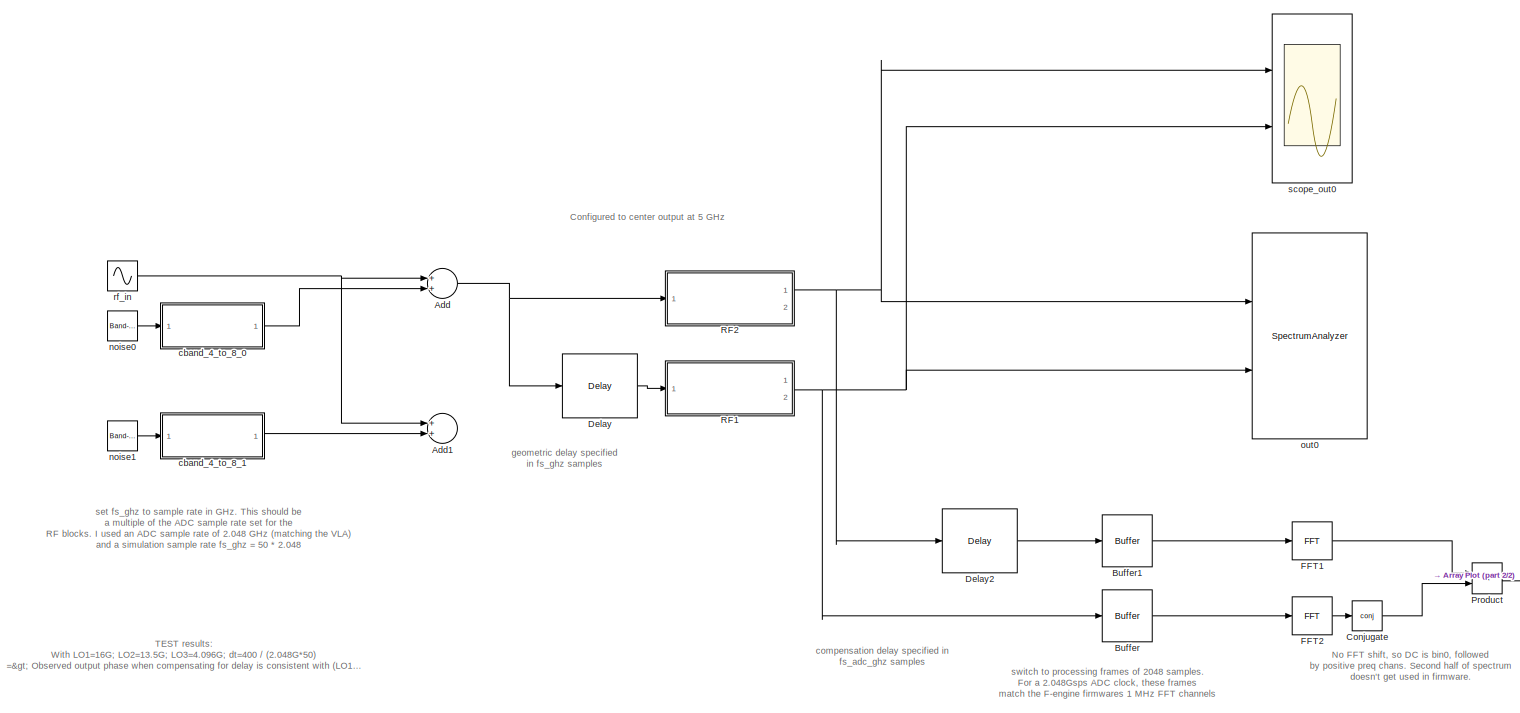
[diagram: root canvas - part 1/2, most of the canvas]
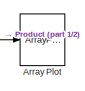
[diagram: root canvas - part 2/2, bottom right region]
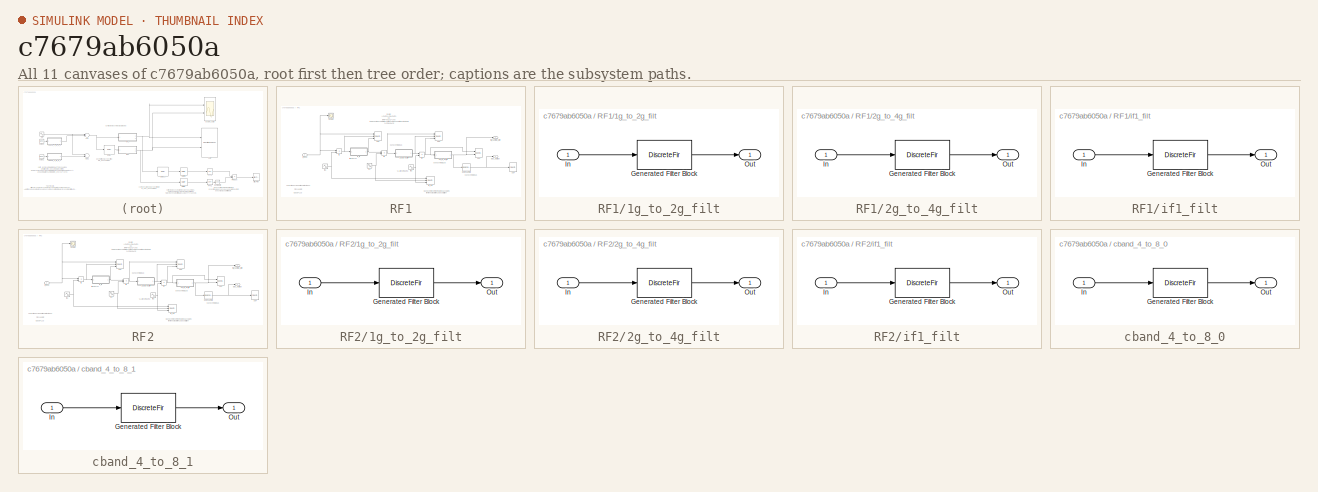
[diagram: thumbnail index - all 11 canvases of the model, root first then tree order]
MODEL slx_c7679ab6050a
KIND model
CONFIG AbsTol = auto
CONFIG EnableMultiTasking = off
CONFIG FixedStep = auto
CONFIG MaxStep = auto
CONFIG MinStep = auto
CONFIG RelTol = 1e-3
CONFIG SampleTimeConstraint = Unconstrained
CONFIG Solver = VariableStepAuto
CONFIG SolverName = VariableStepAuto
CONFIG StartTime = 0.0
CONFIG StopTime = 400000 / (fs_ghz * 1e9)
BLOCK [Sum] Add
  InputSameDT = off
  OutDataTypeStr = Inherit: Inherit via internal rule
  Ports = [2, 1]
  SaturateOnIntegerOverflow = off
BLOCK [Sum] Add1
  InputSameDT = off
  OutDataTypeStr = Inherit: Inherit via internal rule
  Ports = [2, 1]
  SaturateOnIntegerOverflow = off
BLOCK [ArrayPlot] Array Plot
  Ports = [1]
  ScopeSpecificationString = dsp.scopes.ArrayPlotBlockSpecification('CurrentConfiguration', extmgr.ConfigurationSet(extmgr.Configuration('Core','General UI',true),extmgr.Configuration('Core','Source UI',true),extmgr.Configuration('Sources','WiredSimulink',true),extmgr.Configuration('Visuals','Array Plot',true,'DisplayPropertyDefaults',struct('MinYLimReal','18.2743','MaxYLimReal','38.2743','YLabelReal','Amplitude','MinYLimMag'...<+2081ch>
BLOCK [Buffer] Buffer
  N = 2048
  OutputFrames = off
BLOCK [Buffer] Buffer1
  N = 2048
  OutputFrames = off
BLOCK [Math] Conjugate
  Operator = conj
  Ports = [1, 1]
  RndMeth = Zero
BLOCK [Delay] Delay
  DelayLength = 400
  InitialCondition = 0
  InputPortMap = u0
  Ports = [1, 1]
BLOCK [Delay] Delay2
  DelayLength = 400/50
  InitialCondition = 0
  InputPortMap = u0
  Ports = [1, 1]
BLOCK [Reference] FFT1  REF=dspxfrm3/FFT
  Ports = [1, 1]
  SourceBlock = dspxfrm3/FFT
  SourceProductBaseCode = DS
  SourceProductName = DSP System Toolbox
  SourceType = FFT
BLOCK [Reference] FFT2  REF=dspxfrm3/FFT
  Ports = [1, 1]
  SourceBlock = dspxfrm3/FFT
  SourceProductBaseCode = DS
  SourceProductName = DSP System Toolbox
  SourceType = FFT
BLOCK [Product] Product
  InputSameDT = off
  OutDataTypeStr = Inherit: Inherit via internal rule
  Ports = [2, 1]
  RndMeth = Floor
  SaturateOnIntegerOverflow = off
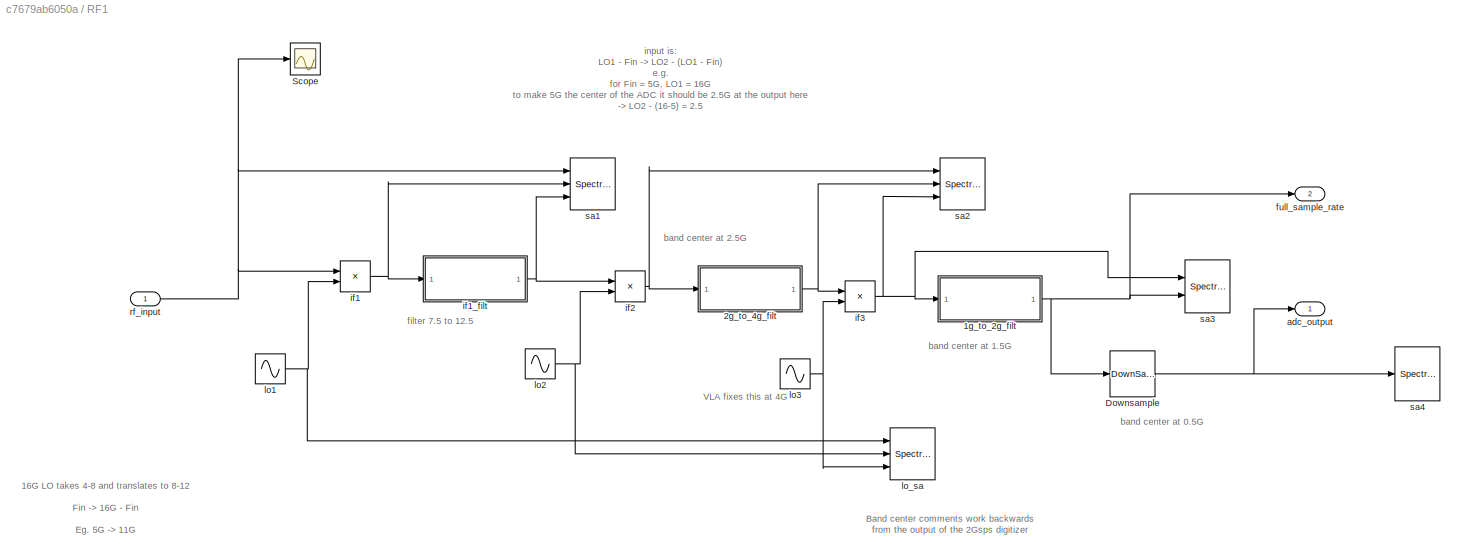
BLOCK [SubSystem] RF1
  Ports = [1, 2]
  RequestExecContextInheritance = off
BLOCK [SubSystem] RF1/1g_to_2g_filt
  CopyFcn = fdesignblkfcn(gcbh, {'CopyFcn'});
  DialogController = fdesignblkfcn
  InitFcn = fdesignblkfcn(gcbh, {'InitFcn'});
  Ports = [1, 1]
  RequestExecContextInheritance = off
  UserDataPersistent = on
BLOCK [DiscreteFir] RF1/1g_to_2g_filt/Generated Filter Block
  Coefficients = [1.01704780809032204e-05 8.00513267945117663e-06 5.63585570426750819e-06 3.08357437286688761e-06 3.7215072795178805e-07 -2.47188488010559091e-06 -5.41963823333738916e-06 -8.44018986497744443e-06 -1.15009636491456078e-05 -1.45681207425512571e-05 -1.76069739067568088e-05 -2.05824169501533862e-05 -2.34593638064728185e-05 -2.62031916145401389e-05 -2.87801820842337675e-05 -3.11579554275093182e-05 -3.33...<+60115ch>
  InputPortMap = u0
  InputProcessing = Columns as channels (frame based)
  OutputPortMap = o0
  Ports = [1, 1]
  Tag = BlockMethodSubSystem
BLOCK [Inport] RF1/1g_to_2g_filt/In
  IconDisplay = Port number
BLOCK [Outport] RF1/1g_to_2g_filt/Out
  IconDisplay = Port number
BLOCK [SubSystem] RF1/2g_to_4g_filt
  CopyFcn = fdesignblkfcn(gcbh, {'CopyFcn'});
  DialogController = fdesignblkfcn
  InitFcn = fdesignblkfcn(gcbh, {'InitFcn'});
  Ports = [1, 1]
  RequestExecContextInheritance = off
  UserDataPersistent = on
BLOCK [DiscreteFir] RF1/2g_to_4g_filt/Generated Filter Block
  Coefficients = [2.93722382866788096e-05 3.41459391652129034e-05 3.77128110868576443e-05 3.99224737036247014e-05 4.06853079430514713e-05 3.99767906724050358e-05 3.78385630665936822e-05 3.43761762884411585e-05 2.97536321530244167e-05 2.41850044819596572e-05 1.79235799255994288e-05 1.12490869892622225e-05 4.4536819092569802e-06 -2.17257546056165917e-06 -8.35599694025994471e-06 -1.38525483000206094e-05 -1.8459448475...<+59953ch>
  InputPortMap = u0
  InputProcessing = Columns as channels (frame based)
  OutputPortMap = o0
  Ports = [1, 1]
  Tag = BlockMethodSubSystem
BLOCK [Inport] RF1/2g_to_4g_filt/In
  IconDisplay = Port number
BLOCK [Outport] RF1/2g_to_4g_filt/Out
  IconDisplay = Port number
BLOCK [DownSample] RF1/Downsample
  InputProcessing = Elements as channels (sample based)
  N = fs_ghz/adc_fs_ghz
  RateOptions = Allow multirate processing
BLOCK [Scope] RF1/Scope
  Floating = off
  NumInputPorts = 1
  Ports = [1]
  ScopeSpecificationString = Simulink.scopes.TimeScopeBlockCfg('CurrentConfiguration', extmgr.ConfigurationSet(extmgr.Configuration('Core','General UI',true),extmgr.Configuration('Core','Source UI',true),extmgr.Configuration('Sources','WiredSimulink',true),extmgr.Configuration('Visuals','Time Domain',true,'SerializedDisplays',{struct('MinYLimReal','-45.88159','MaxYLimReal','46.97367','YLabelReal','','MinYLimMag','0.00000','Ma...<+1378ch>
BLOCK [Outport] RF1/adc_output
  IconDisplay = Port number
BLOCK [Outport] RF1/full_sample_rate
  IconDisplay = Port number
  Port = 2
BLOCK [Product] RF1/if1
  InputSameDT = off
  OutDataTypeStr = Inherit: Inherit via internal rule
  Ports = [2, 1]
  RndMeth = Floor
  SaturateOnIntegerOverflow = off
BLOCK [SubSystem] RF1/if1_filt
  CopyFcn = fdesignblkfcn(gcbh, {'CopyFcn'});
  DialogController = fdesignblkfcn
  InitFcn = fdesignblkfcn(gcbh, {'InitFcn'});
  Ports = [1, 1]
  RequestExecContextInheritance = off
  UserDataPersistent = on
BLOCK [DiscreteFir] RF1/if1_filt/Generated Filter Block
  Coefficients = [3.4793427262309392e-05 5.44930009021886444e-05 7.67230161640516311e-06 -4.90795005220614759e-05 -5.00251028970550559e-05 3.70846460305349548e-05 0.000185516672775070751 0.000317032928598762903 0.000341105037848429924 0.000206892118281761336 -5.9982989554209261e-05 -0.00035835848219169399 -0.000554209791067096871 -0.000546424234637173838 -0.000322177302977984053 2.93739649481302108e-05 0.000356381...<+5519ch>
  InputPortMap = u0
  InputProcessing = Columns as channels (frame based)
  OutputPortMap = o0
  Ports = [1, 1]
  Tag = BlockMethodSubSystem
BLOCK [Inport] RF1/if1_filt/In
  IconDisplay = Port number
BLOCK [Outport] RF1/if1_filt/Out
  IconDisplay = Port number
BLOCK [Product] RF1/if2
  InputSameDT = off
  OutDataTypeStr = Inherit: Inherit via internal rule
  Ports = [2, 1]
  RndMeth = Floor
  SaturateOnIntegerOverflow = off
BLOCK [Product] RF1/if3
  InputSameDT = off
  OutDataTypeStr = Inherit: Inherit via internal rule
  Ports = [2, 1]
  RndMeth = Floor
  SaturateOnIntegerOverflow = off
BLOCK [Sin] RF1/lo1
  Frequency = lo1_ghz * 1e9 * 2 * pi
  Ports = [0, 1]
  SampleTime = 1/(fs_ghz * 1e9)
BLOCK [Sin] RF1/lo2
  Frequency = (lo2_ghz*1e9 + fshift_hz) * 2 * pi
  Ports = [0, 1]
  SampleTime = 1/(fs_ghz*1e9)
BLOCK [Sin] RF1/lo3
  Frequency = (lo3_ghz * 1e9) * 2 * pi
  Ports = [0, 1]
  SampleTime = 1/(fs_ghz * 1e9)
BLOCK [SpectrumAnalyzer] RF1/lo_sa
  NumInputPorts = 3
  Ports = [3]
  ScopeSpecificationString = spbscopes.SpectrumAnalyzerBlockCfg('CurrentConfiguration', extmgr.ConfigurationSet(extmgr.Configuration('Core','General UI',true),extmgr.Configuration('Core','Source UI',true),extmgr.Configuration('Sources','WiredSimulink',true),extmgr.Configuration('Visuals','Spectrum',true,'AxesProperties',struct('Color',{[0 0 0],[0 0 0]},'XColor',{[0.686274509803922 0.686274509803922 0.686274509803922],[0.68627...<+2114ch>
BLOCK [Inport] RF1/rf_input
  IconDisplay = Port number
BLOCK [SpectrumAnalyzer] RF1/sa1
  NumInputPorts = 3
  Ports = [3]
  ScopeSpecificationString = spbscopes.SpectrumAnalyzerBlockCfg('CurrentConfiguration', extmgr.ConfigurationSet(extmgr.Configuration('Core','General UI',true),extmgr.Configuration('Core','Source UI',true),extmgr.Configuration('Sources','WiredSimulink',true),extmgr.Configuration('Visuals','Spectrum',true,'AxesProperties',struct('Color',{[0 0 0],[0 0 0]},'XColor',{[0.686274509803922 0.686274509803922 0.686274509803922],[0.68627...<+2627ch>
BLOCK [SpectrumAnalyzer] RF1/sa2
  NumInputPorts = 3
  Ports = [3]
  ScopeSpecificationString = spbscopes.SpectrumAnalyzerBlockCfg('CurrentConfiguration', extmgr.ConfigurationSet(extmgr.Configuration('Core','General UI',true),extmgr.Configuration('Core','Source UI',true),extmgr.Configuration('Sources','WiredSimulink',true),extmgr.Configuration('Visuals','Spectrum',true,'AxesProperties',struct('Color',{[0 0 0],[0 0 0]},'XColor',{[0.686274509803922 0.686274509803922 0.686274509803922],[0.68627...<+3116ch>
BLOCK [SpectrumAnalyzer] RF1/sa3
  NumInputPorts = 2
  Ports = [2]
  ScopeSpecificationString = spbscopes.SpectrumAnalyzerBlockCfg('CurrentConfiguration', extmgr.ConfigurationSet(extmgr.Configuration('Core','General UI',true),extmgr.Configuration('Core','Source UI',true),extmgr.Configuration('Sources','WiredSimulink',true),extmgr.Configuration('Visuals','Spectrum',true,'AxesProperties',struct('Color',{[0 0 0],[0 0 0]},'XColor',{[0.686274509803922 0.686274509803922 0.686274509803922],[0.68627...<+2526ch>
BLOCK [SpectrumAnalyzer] RF1/sa4
  Ports = [1]
  ScopeSpecificationString = spbscopes.SpectrumAnalyzerBlockCfg('CurrentConfiguration', extmgr.ConfigurationSet(extmgr.Configuration('Core','General UI',true),extmgr.Configuration('Core','Source UI',true),extmgr.Configuration('Sources','WiredSimulink',true),extmgr.Configuration('Visuals','Spectrum',true,'AxesProperties',struct('Color',{[0 0 0],[0 0 0]},'XColor',{[0.686274509803922 0.686274509803922 0.686274509803922],[0.68627...<+2414ch>
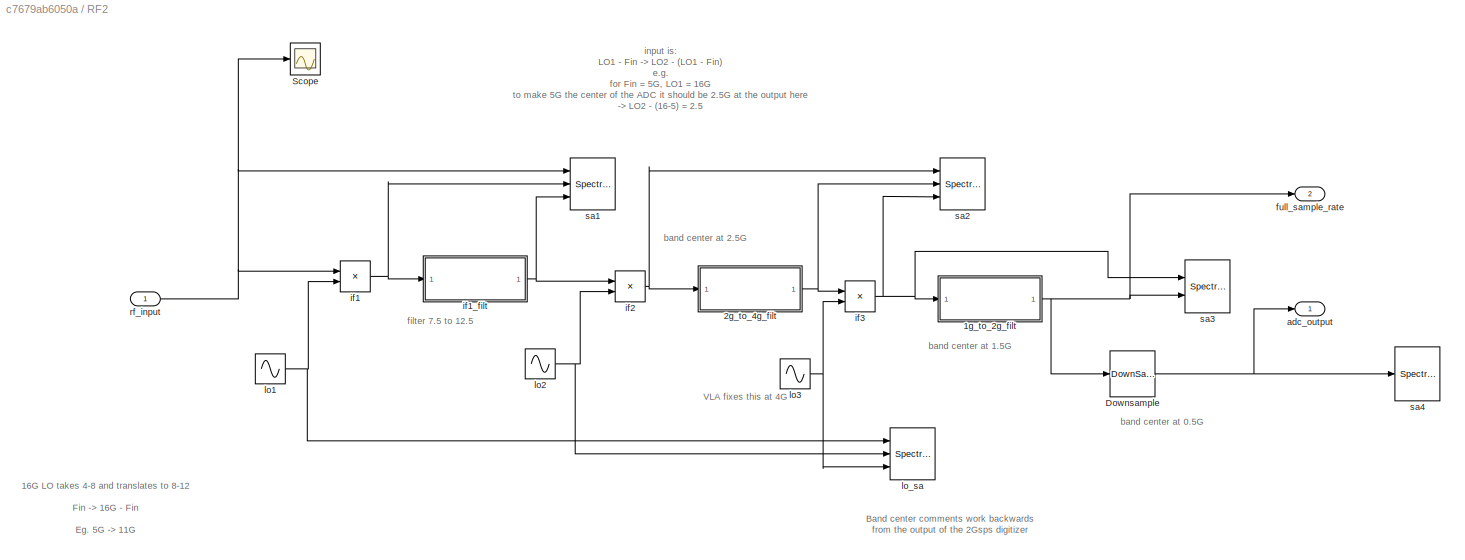
BLOCK [SubSystem] RF2
  Ports = [1, 2]
  RequestExecContextInheritance = off
BLOCK [SubSystem] RF2/1g_to_2g_filt
  CopyFcn = fdesignblkfcn(gcbh, {'CopyFcn'});
  DialogController = fdesignblkfcn
  InitFcn = fdesignblkfcn(gcbh, {'InitFcn'});
  Ports = [1, 1]
  RequestExecContextInheritance = off
  UserDataPersistent = on
BLOCK [DiscreteFir] RF2/1g_to_2g_filt/Generated Filter Block
  Coefficients = [1.01704780809032204e-05 8.00513267945117663e-06 5.63585570426750819e-06 3.08357437286688761e-06 3.7215072795178805e-07 -2.47188488010559091e-06 -5.41963823333738916e-06 -8.44018986497744443e-06 -1.15009636491456078e-05 -1.45681207425512571e-05 -1.76069739067568088e-05 -2.05824169501533862e-05 -2.34593638064728185e-05 -2.62031916145401389e-05 -2.87801820842337675e-05 -3.11579554275093182e-05 -3.33...<+60115ch>
  InputPortMap = u0
  InputProcessing = Columns as channels (frame based)
  OutputPortMap = o0
  Ports = [1, 1]
  Tag = BlockMethodSubSystem
BLOCK [Inport] RF2/1g_to_2g_filt/In
  IconDisplay = Port number
BLOCK [Outport] RF2/1g_to_2g_filt/Out
  IconDisplay = Port number
BLOCK [SubSystem] RF2/2g_to_4g_filt
  CopyFcn = fdesignblkfcn(gcbh, {'CopyFcn'});
  DialogController = fdesignblkfcn
  InitFcn = fdesignblkfcn(gcbh, {'InitFcn'});
  Ports = [1, 1]
  RequestExecContextInheritance = off
  UserDataPersistent = on
BLOCK [DiscreteFir] RF2/2g_to_4g_filt/Generated Filter Block
  Coefficients = [2.93722382866788096e-05 3.41459391652129034e-05 3.77128110868576443e-05 3.99224737036247014e-05 4.06853079430514713e-05 3.99767906724050358e-05 3.78385630665936822e-05 3.43761762884411585e-05 2.97536321530244167e-05 2.41850044819596572e-05 1.79235799255994288e-05 1.12490869892622225e-05 4.4536819092569802e-06 -2.17257546056165917e-06 -8.35599694025994471e-06 -1.38525483000206094e-05 -1.8459448475...<+59953ch>
  InputPortMap = u0
  InputProcessing = Columns as channels (frame based)
  OutputPortMap = o0
  Ports = [1, 1]
  Tag = BlockMethodSubSystem
BLOCK [Inport] RF2/2g_to_4g_filt/In
  IconDisplay = Port number
BLOCK [Outport] RF2/2g_to_4g_filt/Out
  IconDisplay = Port number
BLOCK [DownSample] RF2/Downsample
  InputProcessing = Elements as channels (sample based)
  N = fs_ghz/adc_fs_ghz
  RateOptions = Allow multirate processing
BLOCK [Scope] RF2/Scope
  Floating = off
  NumInputPorts = 1
  Ports = [1]
  ScopeSpecificationString = Simulink.scopes.TimeScopeBlockCfg('CurrentConfiguration', extmgr.ConfigurationSet(extmgr.Configuration('Core','General UI',true),extmgr.Configuration('Core','Source UI',true),extmgr.Configuration('Sources','WiredSimulink',true),extmgr.Configuration('Visuals','Time Domain',true,'SerializedDisplays',{struct('MinYLimReal','-45.88159','MaxYLimReal','46.97367','YLabelReal','','MinYLimMag','0.00000','Ma...<+1378ch>
BLOCK [Outport] RF2/adc_output
  IconDisplay = Port number
BLOCK [Outport] RF2/full_sample_rate
  IconDisplay = Port number
  Port = 2
BLOCK [Product] RF2/if1
  InputSameDT = off
  OutDataTypeStr = Inherit: Inherit via internal rule
  Ports = [2, 1]
  RndMeth = Floor
  SaturateOnIntegerOverflow = off
BLOCK [SubSystem] RF2/if1_filt
  CopyFcn = fdesignblkfcn(gcbh, {'CopyFcn'});
  DialogController = fdesignblkfcn
  InitFcn = fdesignblkfcn(gcbh, {'InitFcn'});
  Ports = [1, 1]
  RequestExecContextInheritance = off
  UserDataPersistent = on
BLOCK [DiscreteFir] RF2/if1_filt/Generated Filter Block
  Coefficients = [3.4793427262309392e-05 5.44930009021886444e-05 7.67230161640516311e-06 -4.90795005220614759e-05 -5.00251028970550559e-05 3.70846460305349548e-05 0.000185516672775070751 0.000317032928598762903 0.000341105037848429924 0.000206892118281761336 -5.9982989554209261e-05 -0.00035835848219169399 -0.000554209791067096871 -0.000546424234637173838 -0.000322177302977984053 2.93739649481302108e-05 0.000356381...<+5519ch>
  InputPortMap = u0
  InputProcessing = Columns as channels (frame based)
  OutputPortMap = o0
  Ports = [1, 1]
  Tag = BlockMethodSubSystem
BLOCK [Inport] RF2/if1_filt/In
  IconDisplay = Port number
BLOCK [Outport] RF2/if1_filt/Out
  IconDisplay = Port number
BLOCK [Product] RF2/if2
  InputSameDT = off
  OutDataTypeStr = Inherit: Inherit via internal rule
  Ports = [2, 1]
  RndMeth = Floor
  SaturateOnIntegerOverflow = off
BLOCK [Product] RF2/if3
  InputSameDT = off
  OutDataTypeStr = Inherit: Inherit via internal rule
  Ports = [2, 1]
  RndMeth = Floor
  SaturateOnIntegerOverflow = off
BLOCK [Sin] RF2/lo1
  Frequency = lo1_ghz * 1e9 * 2 * pi
  Ports = [0, 1]
  SampleTime = 1/(fs_ghz * 1e9)
BLOCK [Sin] RF2/lo2
  Frequency = (lo2_ghz*1e9 + fshift_hz) * 2 * pi
  Ports = [0, 1]
  SampleTime = 1/(fs_ghz*1e9)
BLOCK [Sin] RF2/lo3
  Frequency = (lo3_ghz * 1e9) * 2 * pi
  Ports = [0, 1]
  SampleTime = 1/(fs_ghz * 1e9)
BLOCK [SpectrumAnalyzer] RF2/lo_sa
  NumInputPorts = 3
  Ports = [3]
  ScopeSpecificationString = spbscopes.SpectrumAnalyzerBlockCfg('CurrentConfiguration', extmgr.ConfigurationSet(extmgr.Configuration('Core','General UI',true),extmgr.Configuration('Core','Source UI',true),extmgr.Configuration('Sources','WiredSimulink',true),extmgr.Configuration('Visuals','Spectrum',true,'AxesProperties',struct('Color',{[0 0 0],[0 0 0]},'XColor',{[0.686274509803922 0.686274509803922 0.686274509803922],[0.68627...<+2114ch>
BLOCK [Inport] RF2/rf_input
  IconDisplay = Port number
BLOCK [SpectrumAnalyzer] RF2/sa1
  NumInputPorts = 3
  Ports = [3]
  ScopeSpecificationString = spbscopes.SpectrumAnalyzerBlockCfg('CurrentConfiguration', extmgr.ConfigurationSet(extmgr.Configuration('Core','General UI',true),extmgr.Configuration('Core','Source UI',true),extmgr.Configuration('Sources','WiredSimulink',true),extmgr.Configuration('Visuals','Spectrum',true,'AxesProperties',struct('Color',{[0 0 0],[0 0 0]},'XColor',{[0.686274509803922 0.686274509803922 0.686274509803922],[0.68627...<+2627ch>
BLOCK [SpectrumAnalyzer] RF2/sa2
  NumInputPorts = 3
  Ports = [3]
  ScopeSpecificationString = spbscopes.SpectrumAnalyzerBlockCfg('CurrentConfiguration', extmgr.ConfigurationSet(extmgr.Configuration('Core','General UI',true),extmgr.Configuration('Core','Source UI',true),extmgr.Configuration('Sources','WiredSimulink',true),extmgr.Configuration('Visuals','Spectrum',true,'AxesProperties',struct('Color',{[0 0 0],[0 0 0]},'XColor',{[0.686274509803922 0.686274509803922 0.686274509803922],[0.68627...<+3116ch>
BLOCK [SpectrumAnalyzer] RF2/sa3
  NumInputPorts = 2
  Ports = [2]
  ScopeSpecificationString = spbscopes.SpectrumAnalyzerBlockCfg('CurrentConfiguration', extmgr.ConfigurationSet(extmgr.Configuration('Core','General UI',true),extmgr.Configuration('Core','Source UI',true),extmgr.Configuration('Sources','WiredSimulink',true),extmgr.Configuration('Visuals','Spectrum',true,'AxesProperties',struct('Color',{[0 0 0],[0 0 0]},'XColor',{[0.686274509803922 0.686274509803922 0.686274509803922],[0.68627...<+2526ch>
BLOCK [SpectrumAnalyzer] RF2/sa4
  Ports = [1]
  ScopeSpecificationString = spbscopes.SpectrumAnalyzerBlockCfg('CurrentConfiguration', extmgr.ConfigurationSet(extmgr.Configuration('Core','General UI',true),extmgr.Configuration('Core','Source UI',true),extmgr.Configuration('Sources','WiredSimulink',true),extmgr.Configuration('Visuals','Spectrum',true,'AxesProperties',struct('Color',{[0 0 0],[0 0 0]},'XColor',{[0.686274509803922 0.686274509803922 0.686274509803922],[0.68627...<+2414ch>
BLOCK [SubSystem] cband_4_to_8_0
  CopyFcn = fdesignblkfcn(gcbh, {'CopyFcn'});
  DialogController = fdesignblkfcn
  InitFcn = fdesignblkfcn(gcbh, {'InitFcn'});
  Ports = [1, 1]
  RequestExecContextInheritance = off
  UserDataPersistent = on
BLOCK [DiscreteFir] cband_4_to_8_0/Generated Filter Block
  Coefficients = [-9.40094334225731145e-05 -6.57335329822327186e-05 1.32894792001724368e-05 0.000134559058517748424 0.000277936305882253612 0.000414699232132098247 0.000512636064975988365 0.000542480818344473047 0.000484608636541211375 0.000334635227065140138 0.000106521266150224518 -0.00016793806988651982 -0.000443730870127158567 -0.000670944573551014874 -0.000805375180787633121 -0.000819188075913799977 -0.000708...<+4321ch>
  InputPortMap = u0
  InputProcessing = Columns as channels (frame based)
  OutputPortMap = o0
  Ports = [1, 1]
  Tag = BlockMethodSubSystem
BLOCK [Inport] cband_4_to_8_0/In
  IconDisplay = Port number
BLOCK [Outport] cband_4_to_8_0/Out
  IconDisplay = Port number
BLOCK [SubSystem] cband_4_to_8_1
  CopyFcn = fdesignblkfcn(gcbh, {'CopyFcn'});
  DialogController = fdesignblkfcn
  InitFcn = fdesignblkfcn(gcbh, {'InitFcn'});
  Ports = [1, 1]
  RequestExecContextInheritance = off
  UserDataPersistent = on
BLOCK [DiscreteFir] cband_4_to_8_1/Generated Filter Block
  Coefficients = [-9.40094334225731145e-05 -6.57335329822327186e-05 1.32894792001724368e-05 0.000134559058517748424 0.000277936305882253612 0.000414699232132098247 0.000512636064975988365 0.000542480818344473047 0.000484608636541211375 0.000334635227065140138 0.000106521266150224518 -0.00016793806988651982 -0.000443730870127158567 -0.000670944573551014874 -0.000805375180787633121 -0.000819188075913799977 -0.000708...<+4321ch>
  InputPortMap = u0
  InputProcessing = Columns as channels (frame based)
  OutputPortMap = o0
  Ports = [1, 1]
  Tag = BlockMethodSubSystem
BLOCK [Inport] cband_4_to_8_1/In
  IconDisplay = Port number
BLOCK [Outport] cband_4_to_8_1/Out
  IconDisplay = Port number
BLOCK [Reference] noise0  REF=simulink/Sources/Band-Limited
White Noise
  Ports = [0, 1]
  SourceBlock = simulink/Sources/Band-Limited\nWhite Noise
  SourceProductBaseCode = SL
  SourceProductName = Simulink
  SourceType = Band-Limited White Noise.
BLOCK [Reference] noise1  REF=simulink/Sources/Band-Limited
White Noise
  Ports = [0, 1]
  SourceBlock = simulink/Sources/Band-Limited\nWhite Noise
  SourceProductBaseCode = SL
  SourceProductName = Simulink
  SourceType = Band-Limited White Noise.
BLOCK [SpectrumAnalyzer] out0
  NumInputPorts = 2
  Ports = [2]
  ScopeSpecificationString = spbscopes.SpectrumAnalyzerBlockCfg('CurrentConfiguration', extmgr.ConfigurationSet(extmgr.Configuration('Core','General UI',true),extmgr.Configuration('Core','Source UI',true),extmgr.Configuration('Sources','WiredSimulink',true),extmgr.Configuration('Visuals','Spectrum',true,'AxesProperties',struct('Color',{[0 0 0],[0 0 0]},'XColor',{[0.686274509803922 0.686274509803922 0.686274509803922],[0.68627...<+3069ch>
BLOCK [Sin] rf_in
  Amplitude = 100
  Frequency = 4.75e9 * 2 * pi
  Ports = [0, 1]
  SampleTime = 1/(fs_ghz*1e9)
BLOCK [Scope] scope_out0
  Commented = on
  Floating = off
  NumInputPorts = 2
  Ports = [2]
  ScopeSpecificationString = Simulink.scopes.TimeScopeBlockCfg('CurrentConfiguration', extmgr.ConfigurationSet(extmgr.Configuration('Core','General UI',true),extmgr.Configuration('Core','Source UI',true),extmgr.Configuration('Sources','WiredSimulink',true,'DataLoggingVariableName','ScopeData1','DataLoggingLimitDataPoints',true,'DataLoggingMaxPoints','2000'),extmgr.Configuration('Visuals','Time Domain',true,'SerializedDisplays...<+1509ch>
ANNOTATION (root): set fs_ghz to sample rate in GHz. This should be a multiple of the ADC sample rate set for the RF blocks. I used an ADC sample rate of 2.048 GHz (matching the VLA) and a simulation sample rate fs_ghz = 50 * 2.048
ANNOTATION (root): TEST results: With LO1=16G; LO2=13.5G; LO3=4.096G; dt=400 / (2.048G*50) => Observed output phase when compensating for delay is consistent with (LO1-LO2+LO3)*dt
ANNOTATION (root): Configured to center output at 5 GHz
ANNOTATION (root): No FFT shift, so DC is bin0, followed by positive preq chans. Second half of spectrum doesn't get used in firmware.
ANNOTATION (root): compensation delay specified in fs_adc_ghz samples
ANNOTATION (root): geometric delay specified in fs_ghz samples
ANNOTATION (root): switch to processing frames of 2048 samples. For a 2.048Gsps ADC clock, these frames match the F-engine firmwares 1 MHz FFT channels
ANNOTATION RF1: 16G LO takes 4-8 and translates to 8-12 Fin -> 16G - Fin Eg. 5G -> 11G
ANNOTATION RF1: Band center comments work backwards from the output of the 2Gsps digitizer
ANNOTATION RF1: VLA fixes this at 4G
ANNOTATION RF1: band center at 0.5G
ANNOTATION RF1: band center at 1.5G
ANNOTATION RF1: band center at 2.5G
ANNOTATION RF1: filter 7.5 to 12.5
ANNOTATION RF1: input is: LO1 - Fin -> LO2 - (LO1 - Fin) e.g. for Fin = 5G, LO1 = 16G to make 5G the center of the ADC it should be 2.5G at the output here -> LO2 - (16-5) = 2.5 -> LO2 = 2.5 + 11 = 13.5
ANNOTATION RF2: 16G LO takes 4-8 and translates to 8-12 Fin -> 16G - Fin Eg. 5G -> 11G
ANNOTATION RF2: Band center comments work backwards from the output of the 2Gsps digitizer
ANNOTATION RF2: VLA fixes this at 4G
ANNOTATION RF2: band center at 0.5G
ANNOTATION RF2: band center at 1.5G
ANNOTATION RF2: band center at 2.5G
ANNOTATION RF2: filter 7.5 to 12.5
ANNOTATION RF2: input is: LO1 - Fin -> LO2 - (LO1 - Fin) e.g. for Fin = 5G, LO1 = 16G to make 5G the center of the ADC it should be 2.5G at the output here -> LO2 - (16-5) = 2.5 -> LO2 = 2.5 + 11 = 13.5
NET Add:1 -> Delay:1, RF2:1
LINE Buffer1:1 -> FFT1:1
LINE Buffer:1 -> FFT2:1
LINE Conjugate:1 -> Product:2
LINE Delay2:1 -> Buffer1:1
LINE Delay:1 -> RF1:1
LINE FFT1:1 -> Product:1
LINE FFT2:1 -> Conjugate:1
LINE Product:1 -> Array Plot:1
NET RF1/1g_to_2g_filt:1 -> RF1/Downsample:1, RF1/full_sample_rate:1, RF1/sa3:2
NET RF1/2g_to_4g_filt:1 -> RF1/if3:1, RF1/sa2:2
NET RF1/Downsample:1 -> RF1/adc_output:1, RF1/sa4:1
NET RF1/if1:1 -> RF1/if1_filt:1, RF1/sa1:2
NET RF1/if1_filt:1 -> RF1/if2:1, RF1/sa1:3
NET RF1/if2:1 -> RF1/2g_to_4g_filt:1, RF1/sa2:1
NET RF1/if3:1 -> RF1/1g_to_2g_filt:1, RF1/sa2:3, RF1/sa3:1
NET RF1/lo1:1 -> RF1/if1:2, RF1/lo_sa:1
NET RF1/lo2:1 -> RF1/if2:2, RF1/lo_sa:2
NET RF1/lo3:1 -> RF1/if3:2, RF1/lo_sa:3
NET RF1/rf_input:1 -> RF1/Scope:1, RF1/if1:1, RF1/sa1:1
NET RF1:1 -> Buffer:1, out0:2, scope_out0:2
NET RF2/1g_to_2g_filt:1 -> RF2/Downsample:1, RF2/full_sample_rate:1, RF2/sa3:2
NET RF2/2g_to_4g_filt:1 -> RF2/if3:1, RF2/sa2:2
NET RF2/Downsample:1 -> RF2/adc_output:1, RF2/sa4:1
NET RF2/if1:1 -> RF2/if1_filt:1, RF2/sa1:2
NET RF2/if1_filt:1 -> RF2/if2:1, RF2/sa1:3
NET RF2/if2:1 -> RF2/2g_to_4g_filt:1, RF2/sa2:1
NET RF2/if3:1 -> RF2/1g_to_2g_filt:1, RF2/sa2:3, RF2/sa3:1
NET RF2/lo1:1 -> RF2/if1:2, RF2/lo_sa:1
NET RF2/lo2:1 -> RF2/if2:2, RF2/lo_sa:2
NET RF2/lo3:1 -> RF2/if3:2, RF2/lo_sa:3
NET RF2/rf_input:1 -> RF2/Scope:1, RF2/if1:1, RF2/sa1:1
NET RF2:1 -> Delay2:1, out0:1, scope_out0:1
LINE cband_4_to_8_0:1 -> Add:2
LINE cband_4_to_8_1:1 -> Add1:2
LINE noise0:1 -> cband_4_to_8_0:1
LINE noise1:1 -> cband_4_to_8_1:1
NET rf_in:1 -> Add1:1, Add:1
note: NET lines group one-source signal fan-out (src -> all destinations, sorted); 1:1 wires keep LINE
